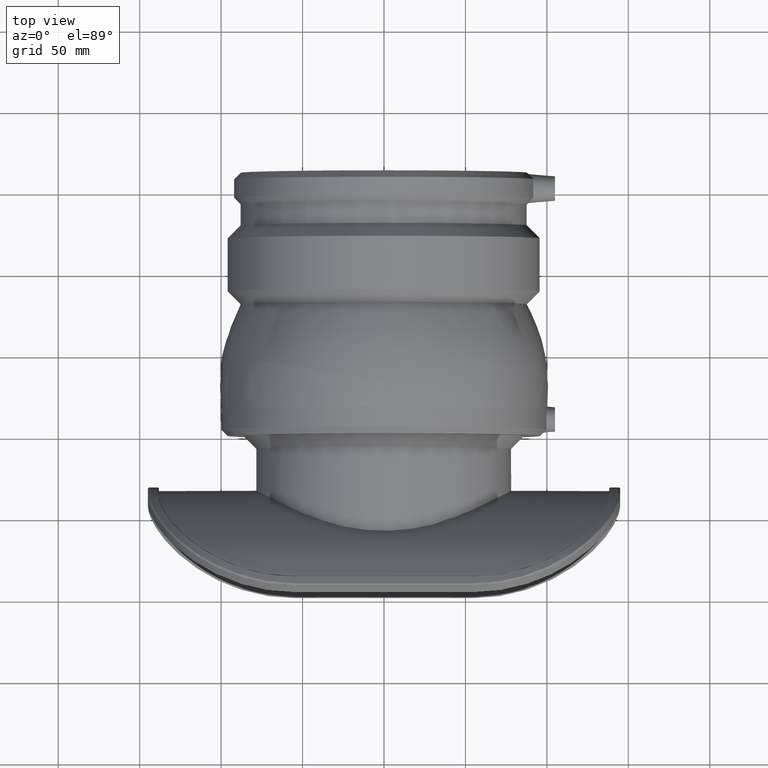
[diagram: clean part render]
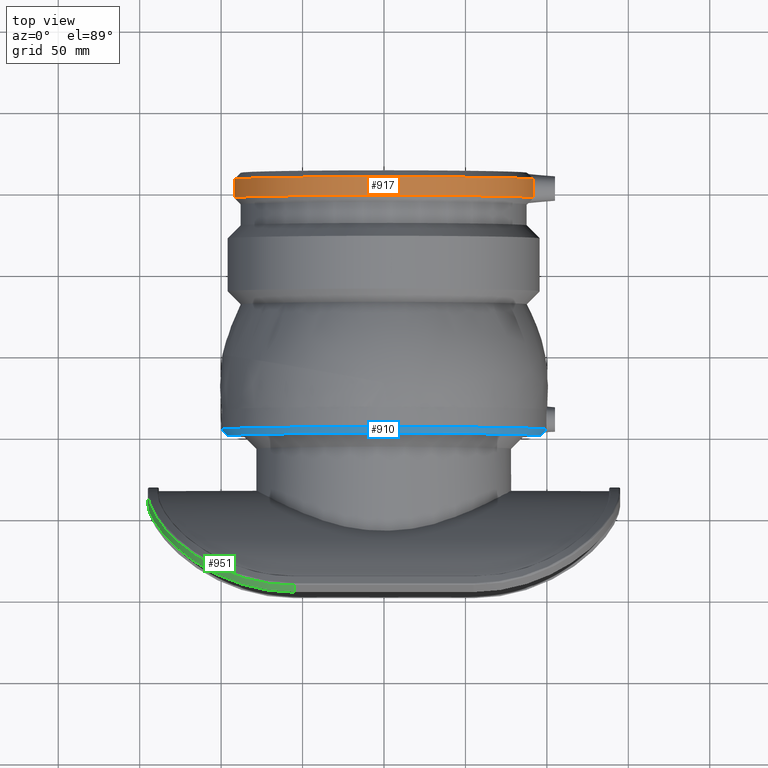
[diagram: same view with three faces highlighted in distinct colors, each labeled with its STEP entity id]
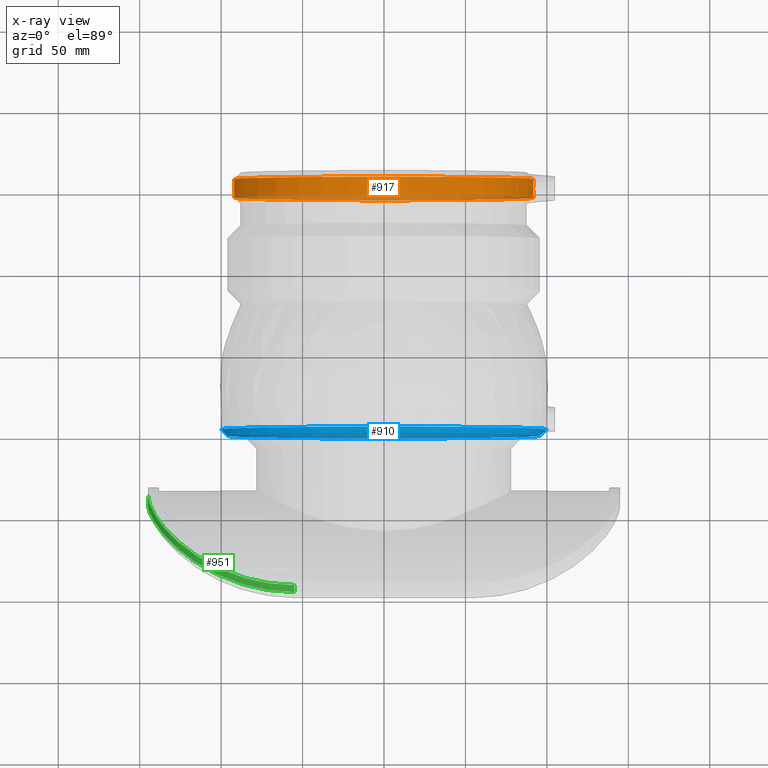
[diagram: x-ray of the same camera — body ghosted, the three highlighted faces saturated]
A machine part, top view with three faces highlighted in distinct colors.
The next image is the same camera in x-ray (body ghosted, the three faces saturated) — at least one of them is partly hidden behind the body in this view.
Their STEP definitions:

[orange] entity #917 — the highlighted cylindrical surface (partial cylindrical patch) has radius 92 mm, axis along (0, 1, 0).
#88=B_SPLINE_CURVE_WITH_KNOTS('',3,(#1392,#1393,#1394,#1395,#1396,#1397,
#1398,#1399,#1400,#1401),.UNSPECIFIED.,.F.,.F.,(4,2,2,2,4),(2.01417064844557,
2.28353431295923,2.60993110973502,2.93632790651081,3.20569157102447),
 .UNSPECIFIED.);
#90=B_SPLINE_CURVE_WITH_KNOTS('',3,(#1417,#1418,#1419,#1420,#1421,#1422,
#1423,#1424,#1425,#1426,#1427),.UNSPECIFIED.,.F.,.F.,(4,2,3,2,4),(-0.595760461289449,
-0.326396796775789,0.,0.326396796775789,0.595760461289451),
 .UNSPECIFIED.);
#178=CYLINDRICAL_SURFACE('',#1017,92.);
#224=FACE_OUTER_BOUND('',#320,.T.);
#320=EDGE_LOOP('',(#698,#699,#700,#701));
#375=CIRCLE('',#982,92.);
#392=CIRCLE('',#1016,92.);
#432=VERTEX_POINT('',#1375);
#433=VERTEX_POINT('',#1376);
#434=VERTEX_POINT('',#1391);
#435=VERTEX_POINT('',#1402);
#518=EDGE_CURVE('',#434,#432,#88,.T.);
#520=EDGE_CURVE('',#433,#435,#90,.T.);
#525=EDGE_CURVE('',#434,#435,#375,.T.);
#544=EDGE_CURVE('',#432,#433,#392,.T.);
#698=ORIENTED_EDGE('',*,*,#520,.T.);
#699=ORIENTED_EDGE('',*,*,#525,.F.);
#700=ORIENTED_EDGE('',*,*,#518,.T.);
#701=ORIENTED_EDGE('',*,*,#544,.T.);
#917=ADVANCED_FACE('',(#224),#178,.T.);
#982=AXIS2_PLACEMENT_3D('',#1487,#1125,#1126);
#1016=AXIS2_PLACEMENT_3D('',#1669,#1193,#1194);
#1017=AXIS2_PLACEMENT_3D('',#1670,#1195,#1196);
#1125=DIRECTION('center_axis',(0.,1.,0.));
#1126=DIRECTION('ref_axis',(1.,0.,0.));
#1193=DIRECTION('center_axis',(0.,1.,0.));
#1194=DIRECTION('ref_axis',(1.,0.,0.));
#1195=DIRECTION('center_axis',(0.,1.,0.));
#1196=DIRECTION('ref_axis',(-1.,0.,0.));
#1375=CARTESIAN_POINT('',(91.7686795260562,146.208,-6.51992776370901));
#1376=CARTESIAN_POINT('',(91.7686795260562,146.208,6.51992776370901));
#1391=CARTESIAN_POINT('',(91.7686795260562,157.6,-6.51992776370901));
#1392=CARTESIAN_POINT('Ctrl Pts',(91.7686795260562,157.6,-6.51992776370895));
#1393=CARTESIAN_POINT('Ctrl Pts',(91.7256716104534,156.912815367922,-7.12526876856054));
#1394=CARTESIAN_POINT('Ctrl Pts',(91.6826954127184,156.095981811169,-7.64322041636861));
#1395=CARTESIAN_POINT('Ctrl Pts',(91.611823999946,154.151516998113,-8.45414664202151));
#1396=CARTESIAN_POINT('Ctrl Pts',(91.5902592892788,152.991989322586,-8.67320029301017));
#1397=CARTESIAN_POINT('Ctrl Pts',(91.5902592892788,150.816010677414,-8.67320029301017));
#1398=CARTESIAN_POINT('Ctrl Pts',(91.611823999946,149.656483001887,-8.45414664202151));
#1399=CARTESIAN_POINT('Ctrl Pts',(91.6826954127184,147.712018188831,-7.64322041636862));
#1400=CARTESIAN_POINT('Ctrl Pts',(91.7256716104534,146.895184632078,-7.12526876856054));
#1401=CARTESIAN_POINT('Ctrl Pts',(91.7686795260562,146.208,-6.51992776370895));
#1402=CARTESIAN_POINT('',(91.7686795260562,157.6,6.51992776370901));
#1417=CARTESIAN_POINT('Ctrl Pts',(91.7686795260562,146.208,6.51992776370894));
#1418=CARTESIAN_POINT('Ctrl Pts',(91.7256716104534,146.895184632078,7.12526876856054));
#1419=CARTESIAN_POINT('Ctrl Pts',(91.6826954127184,147.712018188831,7.64322041636863));
#1420=CARTESIAN_POINT('Ctrl Pts',(91.611823999946,149.656483001887,8.45414664202151));
#1421=CARTESIAN_POINT('Ctrl Pts',(91.5902592892788,150.816010677414,8.67320029301017));
#1422=CARTESIAN_POINT('Ctrl Pts',(91.5902592892788,151.904,8.67320029301017));
#1423=CARTESIAN_POINT('Ctrl Pts',(91.5902592892788,152.991989322586,8.67320029301017));
#1424=CARTESIAN_POINT('Ctrl Pts',(91.611823999946,154.151516998113,8.45414664202151));
#1425=CARTESIAN_POINT('Ctrl Pts',(91.6826954127184,156.095981811169,7.64322041636862));
#1426=CARTESIAN_POINT('Ctrl Pts',(91.7256716104534,156.912815367922,7.12526876856054));
#1427=CARTESIAN_POINT('Ctrl Pts',(91.7686795260562,157.6,6.51992776370895));
#1487=CARTESIAN_POINT('Origin',(0.,157.6,0.));
#1669=CARTESIAN_POINT('Origin',(0.,146.208,0.));
#1670=CARTESIAN_POINT('Origin',(0.,151.904,0.));

[blue] entity #910 — the highlighted conical surface has half-angle 45 deg.
#91=B_SPLINE_CURVE_WITH_KNOTS('',3,(#1431,#1432,#1433,#1434,#1435,#1436,
#1437,#1438,#1439,#1440,#1441,#1442,#1443,#1444),.UNSPECIFIED.,.F.,.F.,
(4,2,2,2,2,2,4),(1.43644840975488,1.48361921660514,1.75200094608469,2.02038267556424,
2.28876440504379,2.55714613452334,2.60431694137361),.UNSPECIFIED.);
#128=CONICAL_SURFACE('',#1004,98.,45.0000000000002);
#155=FACE_BOUND('',#308,.T.);
#217=FACE_OUTER_BOUND('',#307,.T.);
#307=EDGE_LOOP('',(#680,#681));
#308=EDGE_LOOP('',(#682));
#386=CIRCLE('',#1003,96.);
#387=CIRCLE('',#1005,100.);
#436=VERTEX_POINT('',#1429);
#437=VERTEX_POINT('',#1430);
#451=VERTEX_POINT('',#1651);
#521=EDGE_CURVE('',#436,#437,#91,.T.);
#538=EDGE_CURVE('',#451,#451,#386,.T.);
#539=EDGE_CURVE('',#436,#437,#387,.T.);
#680=ORIENTED_EDGE('',*,*,#521,.T.);
#681=ORIENTED_EDGE('',*,*,#539,.F.);
#682=ORIENTED_EDGE('',*,*,#538,.T.);
#910=ADVANCED_FACE('',(#217,#155),#128,.T.);
#1003=AXIS2_PLACEMENT_3D('',#1652,#1167,#1168);
#1004=AXIS2_PLACEMENT_3D('',#1653,#1169,#1170);
#1005=AXIS2_PLACEMENT_3D('',#1654,#1171,#1172);
#1167=DIRECTION('center_axis',(0.,1.,0.));
#1168=DIRECTION('ref_axis',(1.,0.,0.));
#1169=DIRECTION('center_axis',(0.,1.,0.));
#1170=DIRECTION('ref_axis',(-1.,0.,0.));
#1171=DIRECTION('center_axis',(0.,1.,0.));
#1172=DIRECTION('ref_axis',(1.,0.,0.));
#1429=CARTESIAN_POINT('',(99.8688193010284,3.99999999999999,-5.12044250221947));
#1430=CARTESIAN_POINT('',(99.8688193010284,3.99999999999999,5.12044250221947));
#1431=CARTESIAN_POINT('Ctrl Pts',(99.8688193010284,3.99999999999996,-5.1204425022195));
#1432=CARTESIAN_POINT('Ctrl Pts',(99.7818959861448,3.9082146630929,-5.02326245121099));
#1433=CARTESIAN_POINT('Ctrl Pts',(99.6973953848259,3.81883992168129,-4.92339550806257));
#1434=CARTESIAN_POINT('Ctrl Pts',(99.1494407067661,3.23841338256754,-4.2383978073542));
#1435=CARTESIAN_POINT('Ctrl Pts',(98.7157966441593,2.77422953518188,-3.49632662446755));
#1436=CARTESIAN_POINT('Ctrl Pts',(98.1226034603284,2.13608921980018,-1.82512773447306));
#1437=CARTESIAN_POINT('Ctrl Pts',(97.9644709677726,1.96447096777259,-0.894605764931831));
#1438=CARTESIAN_POINT('Ctrl Pts',(97.9644709677726,1.96447096777259,0.894605764931831));
#1439=CARTESIAN_POINT('Ctrl Pts',(98.1226034603284,2.13608921980018,1.82512773447307));
#1440=CARTESIAN_POINT('Ctrl Pts',(98.7157966441593,2.77422953518188,3.49632662446756));
#1441=CARTESIAN_POINT('Ctrl Pts',(99.1494407067661,3.23841338256754,4.2383978073542));
#1442=CARTESIAN_POINT('Ctrl Pts',(99.6973953848259,3.81883992168129,4.92339550806257));
#1443=CARTESIAN_POINT('Ctrl Pts',(99.7818959861448,3.9082146630929,5.023262451211));
#1444=CARTESIAN_POINT('Ctrl Pts',(99.8688193010284,3.99999999999997,5.12044250221951));
#1651=CARTESIAN_POINT('',(-96.,0.,0.));
#1652=CARTESIAN_POINT('Origin',(0.,0.,0.));
#1653=CARTESIAN_POINT('Origin',(0.,1.99999999999999,0.));
#1654=CARTESIAN_POINT('Origin',(0.,3.99999999999999,0.));

[green] entity #951 — the highlighted cylindrical surface (partial cylindrical patch) has radius 90 mm, axis along (0, 0.5408, 0.8411).
#39=LINE('',#2682,#67);
#40=LINE('',#2704,#68);
#67=VECTOR('',#1329,10.9728537802587);
#68=VECTOR('',#1330,7.84695141402381);
#101=B_SPLINE_CURVE_WITH_KNOTS('',3,(#1965,#1966,#1967,#1968,#1969,#1970,
#1971,#1972,#1973,#1974),.UNSPECIFIED.,.F.,.F.,(4,1,1,1,1,1,1,4),(-14.8431934693355,
-12.7227372594304,-10.6022810495254,-8.48182483962029,-6.36136862971522,
-4.24091241981014,-2.12045620990507,0.),.UNSPECIFIED.);
#121=B_SPLINE_CURVE_WITH_KNOTS('',3,(#2684,#2685,#2686,#2687,#2688,#2689,
#2690,#2691,#2692,#2693,#2694,#2695,#2696,#2697,#2698,#2699,#2700,#2701,
#2702,#2703),.UNSPECIFIED.,.F.,.F.,(4,2,2,2,2,2,2,2,2,4),(15.4934365036274,
16.9363077235845,18.0673511776189,19.1983946316533,20.3294380856877,21.4604815397221,
23.6408145791962,25.8211476186704,28.0014806581445,30.1818136976187),
 .UNSPECIFIED.);
#193=CYLINDRICAL_SURFACE('',#1071,90.);
#258=FACE_OUTER_BOUND('',#359,.T.);
#359=EDGE_LOOP('',(#845,#846,#847,#848));
#464=VERTEX_POINT('',#1898);
#466=VERTEX_POINT('',#1963);
#504=VERTEX_POINT('',#2681);
#505=VERTEX_POINT('',#2683);
#556=EDGE_CURVE('',#466,#464,#101,.T.);
#621=EDGE_CURVE('',#466,#504,#39,.T.);
#622=EDGE_CURVE('',#504,#505,#121,.T.);
#623=EDGE_CURVE('',#505,#464,#40,.T.);
#845=ORIENTED_EDGE('',*,*,#556,.F.);
#846=ORIENTED_EDGE('',*,*,#621,.T.);
#847=ORIENTED_EDGE('',*,*,#622,.T.);
#848=ORIENTED_EDGE('',*,*,#623,.T.);
#951=ADVANCED_FACE('',(#258),#193,.T.);
#1071=AXIS2_PLACEMENT_3D('',#2680,#1327,#1328);
#1327=DIRECTION('center_axis',(0.,0.540846216681506,0.841121495327103));
#1328=DIRECTION('ref_axis',(-0.707106781186548,-0.594762713147563,0.382436027394582));
#1329=DIRECTION('',(0.,-0.540846216681506,-0.841121495327103));
#1330=DIRECTION('',(0.,0.540846216681506,0.841121495327103));
#1898=CARTESIAN_POINT('',(-55.,-93.5502289300534,111.740426423011));
#1963=CARTESIAN_POINT('',(-145.,-36.8477831669138,33.517906368077));
#1965=CARTESIAN_POINT('Ctrl Pts',(-145.,-36.8477831669138,33.517906368077));
#1966=CARTESIAN_POINT('Ctrl Pts',(-145.,-38.6752514097003,40.3858364862842));
#1967=CARTESIAN_POINT('Ctrl Pts',(-144.078205999002,-43.4419529888268,53.8514113450251));
#1968=CARTESIAN_POINT('Ctrl Pts',(-138.764323805311,-53.4437869359681,72.1886610360017));
#1969=CARTESIAN_POINT('Ctrl Pts',(-128.817010191206,-65.0653182492929,87.4430075144845));
#1970=CARTESIAN_POINT('Ctrl Pts',(-114.471213971863,-76.4721817888338,98.8780989311653));
#1971=CARTESIAN_POINT('Ctrl Pts',(-96.6304847128652,-85.9142527353325,106.520119663958));
#1972=CARTESIAN_POINT('Ctrl Pts',(-76.4197216010645,-92.1132016514019,110.820404639525));
#1973=CARTESIAN_POINT('Ctrl Pts',(-62.1395831983336,-93.5502289300533,111.740426423011));
#1974=CARTESIAN_POINT('Ctrl Pts',(-55.,-93.5502289300533,111.740426423011));
#2680=CARTESIAN_POINT('Origin',(-55.,-37.8322449975472,31.9868759540057));
#2681=CARTESIAN_POINT('',(-145.,-42.7824096201661,24.2884031884201));
#2682=CARTESIAN_POINT('',(-145.,-37.8322449975472,31.9868759540057));
#2683=CARTESIAN_POINT('',(-55.,-97.7942229148117,105.140186915888));
#2684=CARTESIAN_POINT('Ctrl Pts',(-145.,-42.7824096201661,24.2884031884201));
#2685=CARTESIAN_POINT('Ctrl Pts',(-145.,-43.730809082212,29.0763036465717));
#2686=CARTESIAN_POINT('Ctrl Pts',(-144.808202574666,-44.9534304768039,33.7721946786565));
#2687=CARTESIAN_POINT('Ctrl Pts',(-144.021011762505,-47.5732686983797,41.9041254304049));
#2688=CARTESIAN_POINT('Ctrl Pts',(-143.503236019198,-48.9349359278698,45.5671663558428));
#2689=CARTESIAN_POINT('Ctrl Pts',(-142.02255804067,-52.030918233186,52.8008437210258));
#2690=CARTESIAN_POINT('Ctrl Pts',(-141.058441213241,-53.765036111694,56.3713158894403));
#2691=CARTESIAN_POINT('Ctrl Pts',(-138.648980184049,-57.4807823771671,63.1944040346853));
#2692=CARTESIAN_POINT('Ctrl Pts',(-137.201403476322,-59.4638241859268,66.4508469271108));
#2693=CARTESIAN_POINT('Ctrl Pts',(-133.879620170565,-63.500399032925,72.4890317606754));
#2694=CARTESIAN_POINT('Ctrl Pts',(-132.005044257946,-65.5529407364389,75.2712331910956));
#2695=CARTESIAN_POINT('Ctrl Pts',(-126.134839713175,-71.368663464976,82.5892781478525));
#2696=CARTESIAN_POINT('Ctrl Pts',(-121.431928092721,-75.3058817774638,86.7982932304397));
#2697=CARTESIAN_POINT('Ctrl Pts',(-110.59928929932,-82.6592123603116,93.8341936471869));
#2698=CARTESIAN_POINT('Ctrl Pts',(-104.4710139425,-86.0707135590272,96.6681307382873));
#2699=CARTESIAN_POINT('Ctrl Pts',(-91.2832477468966,-91.7439061648793,101.057622318261));
#2700=CARTESIAN_POINT('Ctrl Pts',(-84.2069163173403,-94.0104816863937,102.624884873931));
#2701=CARTESIAN_POINT('Ctrl Pts',(-69.6992795341315,-97.036778101603,104.665181466056));
#2702=CARTESIAN_POINT('Ctrl Pts',(-62.2677767982472,-97.7942229148117,105.140186915888));
#2703=CARTESIAN_POINT('Ctrl Pts',(-55.,-97.7942229148117,105.140186915888));
#2704=CARTESIAN_POINT('',(-55.,-113.533179576986,80.6630354553412));